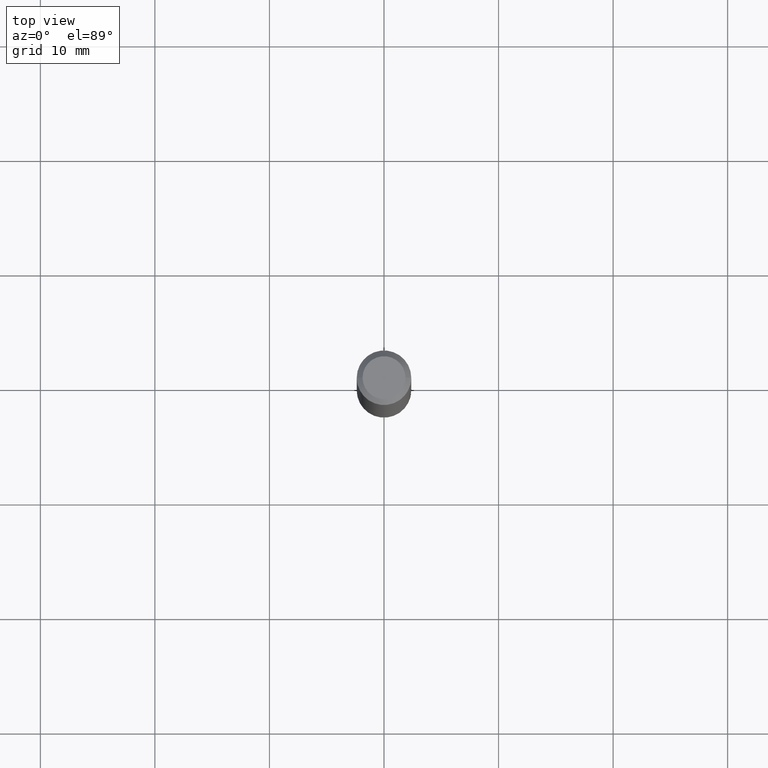
[diagram: clean part render]
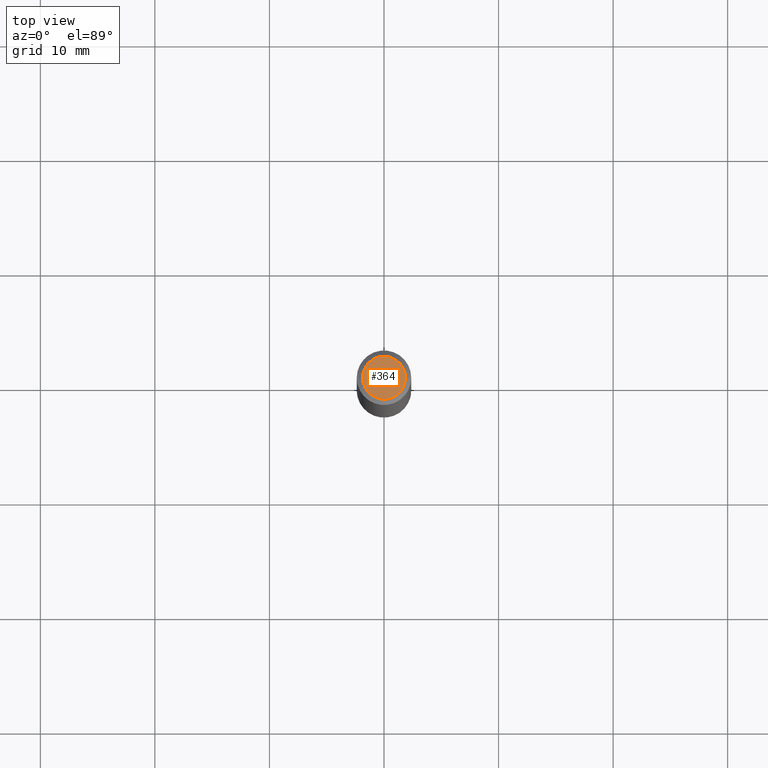
[diagram: same view with one face highlighted and labeled with its STEP entity id]
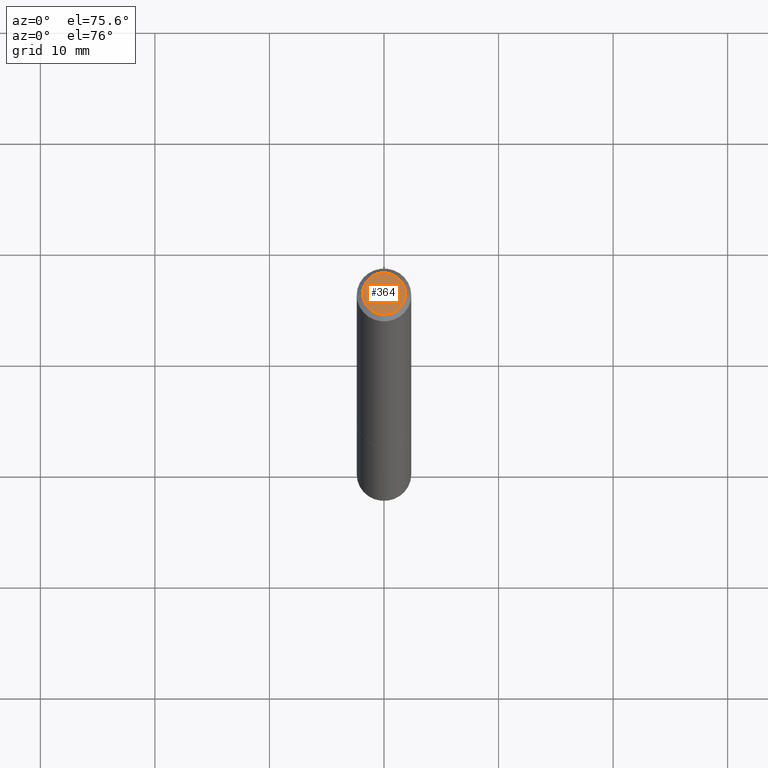
[diagram: same view with one face highlighted and labeled with its STEP entity id]
A machine part, top view. The second image highlights one B-rep face of the part: STEP entity #364.
A second angle (auxiliary view) of the same face is appended — the face is thin or edge-on in the first view.
In plain terms, the highlighted planar face has unit normal (0, -0, -1).
Its self-contained STEP definition (entity closure, byte-faithful):
#10 = AXIS2_PLACEMENT_3D ( 'NONE', #168, #224, #234 ) ;
#11 = PLANE ( 'NONE',  #264 ) ;
#24 = CARTESIAN_POINT ( 'NONE',  ( -1.043851414335219820E-46, 1.490343170380447200E-32, 4.268512490100411279E-18 ) ) ;
#38 = CIRCLE ( 'NONE', #10, 0.07374999999999982958 ) ;
#81 = CARTESIAN_POINT ( 'NONE',  ( 0.07374999999999982958, -6.094815207017959226E-16, 4.268512490104342487E-18 ) ) ;
#86 = DIRECTION ( 'NONE',  ( 1.000000000000000000, -6.982962677686266711E-15, 4.875869617646596737E-29 ) ) ;
#141 = CIRCLE ( 'NONE', #249, 0.07374999999999982958 ) ;
#142 = CARTESIAN_POINT ( 'NONE',  ( -0.07374999999999982958, 5.499083108677920638E-16, 4.268512490096688071E-18 ) ) ;
#147 = EDGE_CURVE ( 'NONE', #181, #270, #141, .T. ) ;
#168 = CARTESIAN_POINT ( 'NONE',  ( -1.043851414335219820E-46, 1.490343170380447200E-32, 4.268512490100411279E-18 ) ) ;
#170 = EDGE_CURVE ( 'NONE', #270, #181, #38, .T. ) ;
#181 = VERTEX_POINT ( 'NONE', #81 ) ;
#203 = CARTESIAN_POINT ( 'NONE',  ( 5.149934974793609077E-16, 0.07374999999999982958, -2.553624924946311773E-16 ) ) ;
#224 = DIRECTION ( 'NONE',  ( -2.445468806185136597E-29, 3.491481338843145583E-15, 1.000000000000000000 ) ) ;
#234 = DIRECTION ( 'NONE',  ( 1.000000000000000000, -6.982962677686266711E-15, 4.875869617646596737E-29 ) ) ;
#243 = FACE_OUTER_BOUND ( 'NONE', #340, .T. ) ;
#249 = AXIS2_PLACEMENT_3D ( 'NONE', #24, #341, #86 ) ;
#264 = AXIS2_PLACEMENT_3D ( 'NONE', #203, #351, #319 ) ;
#270 = VERTEX_POINT ( 'NONE', #142 ) ;
#319 = DIRECTION ( 'NONE',  ( -1.000000000000000000, 6.982962677686265922E-15, -4.876176775795935793E-29 ) ) ;
#340 = EDGE_LOOP ( 'NONE', ( #357, #362 ) ) ;
#341 = DIRECTION ( 'NONE',  ( -2.445468806185136597E-29, 3.491481338843145583E-15, 1.000000000000000000 ) ) ;
#351 = DIRECTION ( 'NONE',  ( 2.438088387897960049E-29, -3.491481338843145188E-15, -1.000000000000000000 ) ) ;
#357 = ORIENTED_EDGE ( 'NONE', *, *, #170, .T. ) ;
#362 = ORIENTED_EDGE ( 'NONE', *, *, #147, .T. ) ;
#364 = ADVANCED_FACE ( 'NONE', ( #243 ), #11, .F. ) ;